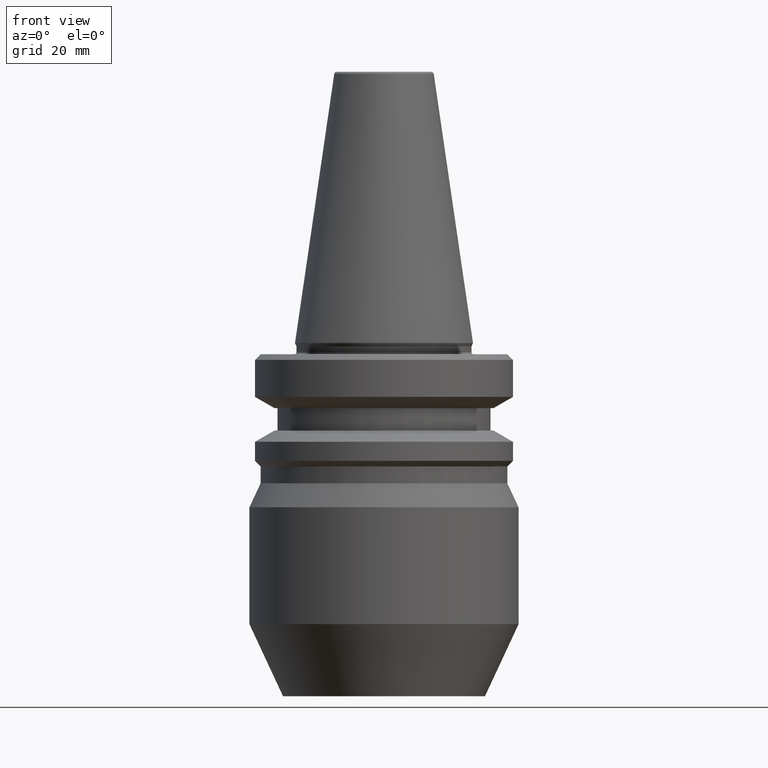
[diagram: clean part render]
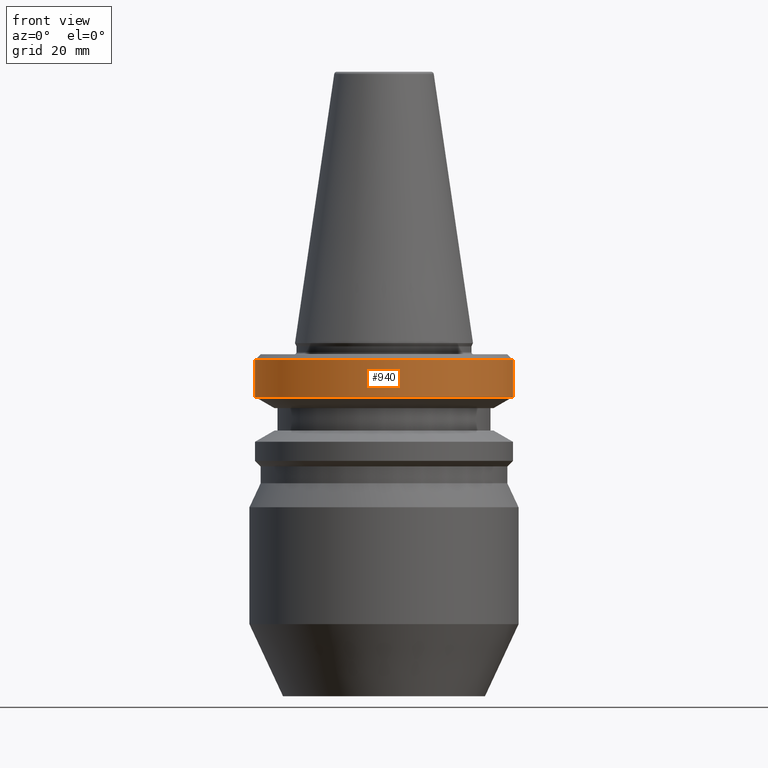
[diagram: same view with one face highlighted and labeled with its STEP entity id]
A machine part, front view. The second image highlights one B-rep face of the part: STEP entity #940.
In plain terms, the highlighted cylindrical surface (partial cylindrical patch) has radius 23 mm, axis along (-0, -0, 1).
Its self-contained STEP definition (entity closure, byte-faithful):
#7 = AXIS2_PLACEMENT_3D ( 'NONE', #757, #296, #773 ) ;
#18 = DIRECTION ( 'NONE',  ( 1.000000000000000000, 0.0000000000000000000, 0.0000000000000000000 ) ) ;
#46 = FACE_OUTER_BOUND ( 'NONE', #889, .T. ) ;
#63 = CARTESIAN_POINT ( 'NONE',  ( -23.00000000000002100, 2.816687638038914700E-015, -9.600117335054614300 ) ) ;
#81 = CARTESIAN_POINT ( 'NONE',  ( 23.00000000000002100, 0.0000000000000000000, 80.11315735852554100 ) ) ;
#83 = CARTESIAN_POINT ( 'NONE',  ( -23.00000000000002100, 2.816687638038915100E-015, -2.999999999999891600 ) ) ;
#148 = VERTEX_POINT ( 'NONE', #728 ) ;
#158 = ORIENTED_EDGE ( 'NONE', *, *, #596, .T. ) ;
#214 = CYLINDRICAL_SURFACE ( 'NONE', #646, 23.00000000000002100 ) ;
#238 = ORIENTED_EDGE ( 'NONE', *, *, #416, .F. ) ;
#281 = DIRECTION ( 'NONE',  ( -0.0000000000000000000, -0.0000000000000000000, 1.000000000000000000 ) ) ;
#296 = DIRECTION ( 'NONE',  ( -0.0000000000000000000, -0.0000000000000000000, 1.000000000000000000 ) ) ;
#335 = ORIENTED_EDGE ( 'NONE', *, *, #971, .F. ) ;
#341 = VERTEX_POINT ( 'NONE', #662 ) ;
#375 = ORIENTED_EDGE ( 'NONE', *, *, #671, .T. ) ;
#416 = EDGE_CURVE ( 'NONE', #651, #600, #534, .T. ) ;
#421 = DIRECTION ( 'NONE',  ( 1.000000000000000000, 0.0000000000000000000, 0.0000000000000000000 ) ) ;
#461 = VECTOR ( 'NONE', #281, 1000.000000000000000 ) ;
#488 = LINE ( 'NONE', #81, #461 ) ;
#534 = LINE ( 'NONE', #650, #912 ) ;
#541 = DIRECTION ( 'NONE',  ( -0.0000000000000000000, -0.0000000000000000000, 1.000000000000000000 ) ) ;
#596 = EDGE_CURVE ( 'NONE', #651, #148, #836, .T. ) ;
#600 = VERTEX_POINT ( 'NONE', #83 ) ;
#607 = CIRCLE ( 'NONE', #627, 23.00000000000002100 ) ;
#627 = AXIS2_PLACEMENT_3D ( 'NONE', #876, #541, #18 ) ;
#646 = AXIS2_PLACEMENT_3D ( 'NONE', #781, #710, #421 ) ;
#650 = CARTESIAN_POINT ( 'NONE',  ( -23.00000000000002100, 2.816687638038915100E-015, 80.11315735852554100 ) ) ;
#651 = VERTEX_POINT ( 'NONE', #63 ) ;
#662 = CARTESIAN_POINT ( 'NONE',  ( 23.00000000000002100, 0.0000000000000000000, -2.999999999999891600 ) ) ;
#664 = DIRECTION ( 'NONE',  ( -0.0000000000000000000, -0.0000000000000000000, 1.000000000000000000 ) ) ;
#671 = EDGE_CURVE ( 'NONE', #148, #341, #488, .T. ) ;
#710 = DIRECTION ( 'NONE',  ( -0.0000000000000000000, -0.0000000000000000000, 1.000000000000000000 ) ) ;
#728 = CARTESIAN_POINT ( 'NONE',  ( 23.00000000000002100, 0.0000000000000000000, -9.600117335054614300 ) ) ;
#757 = CARTESIAN_POINT ( 'NONE',  ( 0.0000000000000000000, 0.0000000000000000000, -9.600117335054614300 ) ) ;
#773 = DIRECTION ( 'NONE',  ( 1.000000000000000000, 0.0000000000000000000, 0.0000000000000000000 ) ) ;
#781 = CARTESIAN_POINT ( 'NONE',  ( 0.0000000000000000000, 0.0000000000000000000, 80.11315735852554100 ) ) ;
#836 = CIRCLE ( 'NONE', #7, 23.00000000000002100 ) ;
#876 = CARTESIAN_POINT ( 'NONE',  ( 0.0000000000000000000, 0.0000000000000000000, -2.999999999999891600 ) ) ;
#889 = EDGE_LOOP ( 'NONE', ( #238, #158, #375, #335 ) ) ;
#912 = VECTOR ( 'NONE', #664, 1000.000000000000000 ) ;
#940 = ADVANCED_FACE ( 'NONE', ( #46 ), #214, .T. ) ;
#971 = EDGE_CURVE ( 'NONE', #600, #341, #607, .T. ) ;